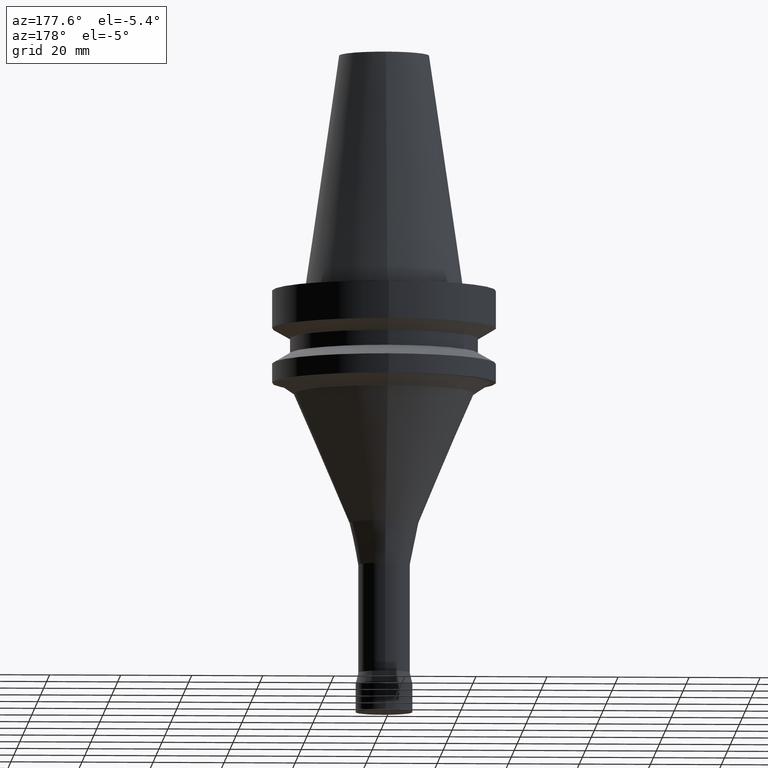
[diagram: clean part render]
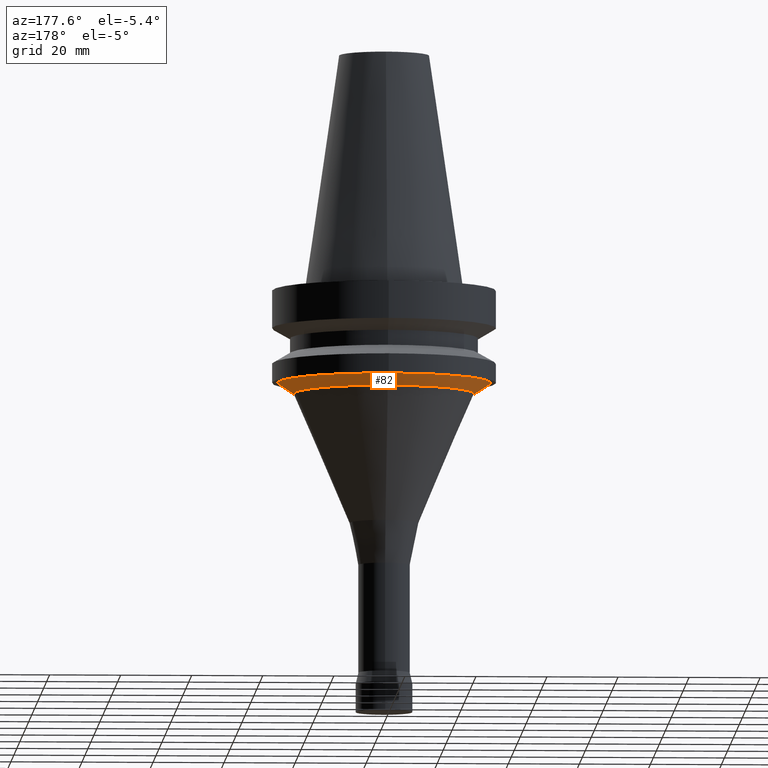
[diagram: same view with one face highlighted and labeled with its STEP entity id]
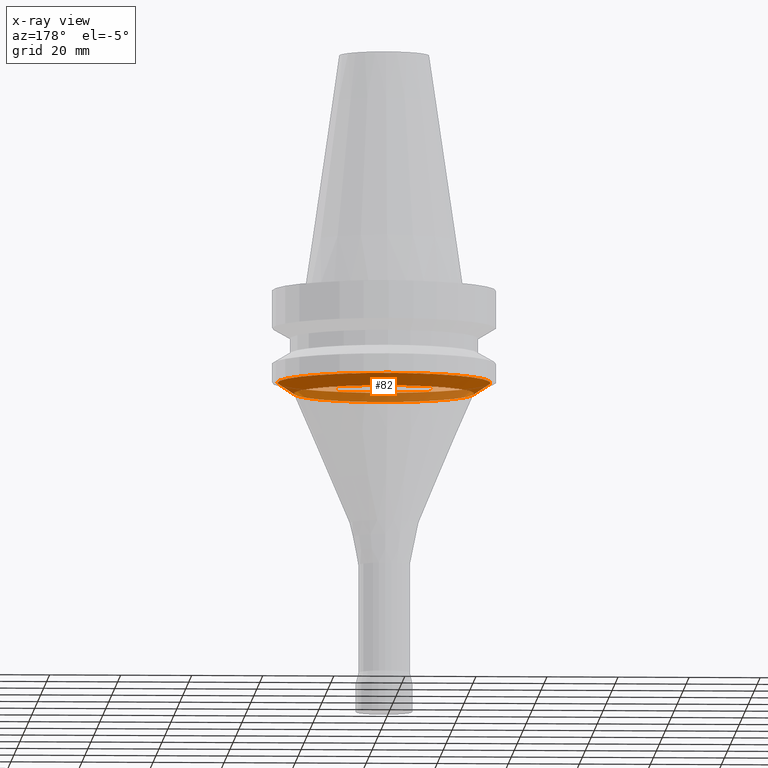
[diagram: x-ray of the same camera — body ghosted, the highlighted face saturated]
A machine part, auxiliary view. The second image highlights one B-rep face of the part: STEP entity #82.
The next image is the same camera in x-ray: the body ghosted, the highlighted face saturated — about 36% of this face is hidden behind the body in this view.
In plain terms, the highlighted conical surface has half-angle 56.634 deg.
Its self-contained STEP definition (entity closure, byte-faithful):
#82=ADVANCED_FACE('',(#114,#115),#116,.T.);
#114=FACE_BOUND('',#163,.T.);
#115=FACE_BOUND('',#164,.T.);
#116=CONICAL_SURFACE('',#165,27.70332396,0.988445637806798);
#163=EDGE_LOOP('',(#226));
#164=EDGE_LOOP('',(#227));
#165=AXIS2_PLACEMENT_3D('',#228,#229,#230);
#226=ORIENTED_EDGE('',*,*,#282,.F.);
#227=ORIENTED_EDGE('',*,*,#281,.T.);
#228=CARTESIAN_POINT('',(1.74588328223977E-015,3.49176656447954E-015,-28.512437765));
#229=DIRECTION('',(-6.12323399573677E-017,-1.22464679914735E-016,1.0));
#230=DIRECTION('',(-1.23259516440783E-032,1.0,1.22464679914735E-016));
#281=EDGE_CURVE('',#304,#304,#305,.T.);
#282=EDGE_CURVE('',#306,#306,#307,.T.);
#304=VERTEX_POINT('',#336);
#305=CIRCLE('',#337,30.0);
#306=VERTEX_POINT('',#338);
#307=CIRCLE('',#339,25.40664792);
#336=CARTESIAN_POINT('',(1.65327317884893E-015,30.0,-27.0));
#337=AXIS2_PLACEMENT_3D('',#375,#376,#377);
#338=CARTESIAN_POINT('',(1.83849338563061E-015,25.40664792,-30.02487553));
#339=AXIS2_PLACEMENT_3D('',#378,#379,#380);
#375=CARTESIAN_POINT('',(1.65327317884893E-015,3.30654635769785E-015,-27.0));
#376=DIRECTION('',(6.12323399573677E-017,1.22464679914735E-016,-1.0));
#377=DIRECTION('',(-1.23259516440783E-032,1.0,1.22464679914735E-016));
#378=CARTESIAN_POINT('',(1.83849338563061E-015,3.67698677126122E-015,-30.02487553));
#379=DIRECTION('',(6.12323399573677E-017,1.22464679914735E-016,-1.0));
#380=DIRECTION('',(-1.23259516440783E-032,1.0,1.22464679914735E-016));